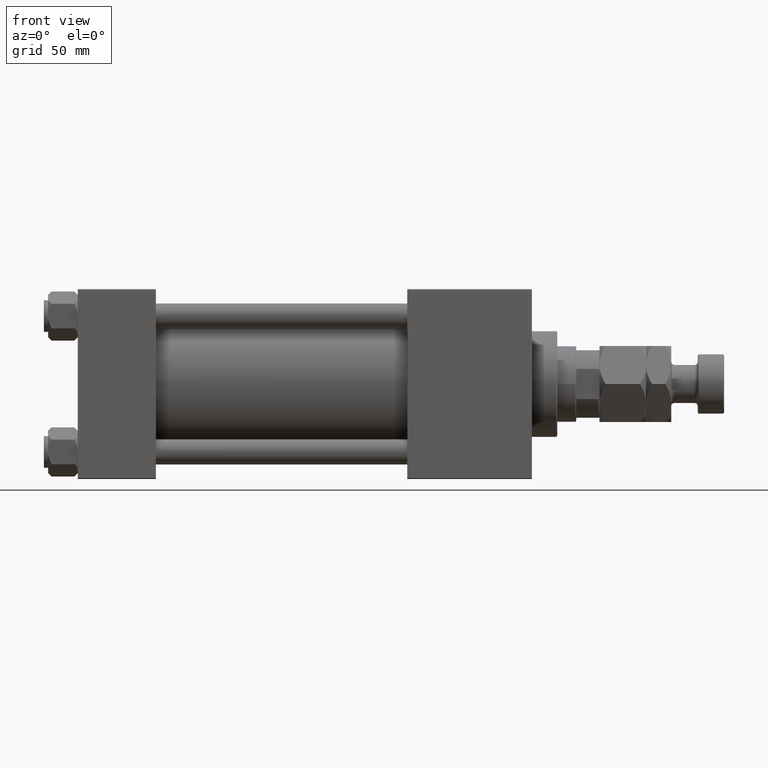
[diagram: clean part render]
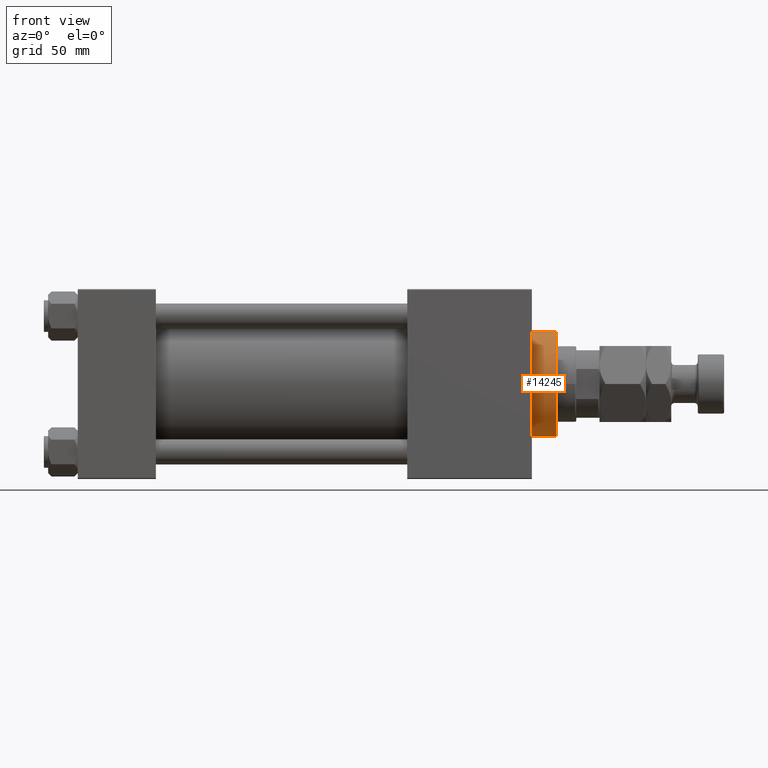
[diagram: same view with one face highlighted and labeled with its STEP entity id]
A machine part, front view. The second image highlights one B-rep face of the part: STEP entity #14245.
In plain terms, the highlighted cylindrical surface (partial cylindrical patch) has radius 25 mm, axis along (-1, -0, -0).
Its self-contained STEP definition (entity closure, byte-faithful):
#133 = AXIS2_PLACEMENT_3D ( 'NONE', #24918, #45399, #9673 ) ;
#430 = EDGE_LOOP ( 'NONE', ( #23771, #21207, #16309, #26167 ) ) ;
#539 = CARTESIAN_POINT ( 'NONE',  ( -25.00000000000000000, 0.000000000000000000, 40.70000000000000284 ) ) ;
#1272 = VERTEX_POINT ( 'NONE', #29837 ) ;
#2043 = FACE_OUTER_BOUND ( 'NONE', #430, .T. ) ;
#3930 = CARTESIAN_POINT ( 'NONE',  ( -25.00000000000000000, 0.000000000000000000, 28.69999999999999929 ) ) ;
#5412 = DIRECTION ( 'NONE',  ( 1.000000000000000000, 0.000000000000000000, 0.000000000000000000 ) ) ;
#6093 = VERTEX_POINT ( 'NONE', #3930 ) ;
#6391 = CARTESIAN_POINT ( 'NONE',  ( 0.000000000000000000, 0.000000000000000000, 40.20000000000000284 ) ) ;
#8114 = AXIS2_PLACEMENT_3D ( 'NONE', #44826, #24860, #5412 ) ;
#8673 = DIRECTION ( 'NONE',  ( -0.000000000000000000, -0.000000000000000000, -1.000000000000000000 ) ) ;
#8724 = CARTESIAN_POINT ( 'NONE',  ( 25.00000000000000000, 3.061616997868383043E-15, 28.69999999999999929 ) ) ;
#9673 = DIRECTION ( 'NONE',  ( -1.000000000000000000, 0.000000000000000000, 0.000000000000000000 ) ) ;
#14245 = ADVANCED_FACE ( 'NONE', ( #2043 ), #50110, .T. ) ;
#16309 = ORIENTED_EDGE ( 'NONE', *, *, #43107, .T. ) ;
#18242 = CARTESIAN_POINT ( 'NONE',  ( 25.00000000000000000, 3.061616997868383043E-15, 40.70000000000000284 ) ) ;
#19727 = CIRCLE ( 'NONE', #40692, 25.00000000000000000 ) ;
#21207 = ORIENTED_EDGE ( 'NONE', *, *, #25951, .T. ) ;
#22182 = DIRECTION ( 'NONE',  ( -0.000000000000000000, -0.000000000000000000, -1.000000000000000000 ) ) ;
#23771 = ORIENTED_EDGE ( 'NONE', *, *, #37480, .F. ) ;
#24860 = DIRECTION ( 'NONE',  ( 0.000000000000000000, 0.000000000000000000, 1.000000000000000000 ) ) ;
#24918 = CARTESIAN_POINT ( 'NONE',  ( 0.000000000000000000, 0.000000000000000000, 40.70000000000000284 ) ) ;
#25951 = EDGE_CURVE ( 'NONE', #47036, #1272, #19727, .T. ) ;
#26167 = ORIENTED_EDGE ( 'NONE', *, *, #30545, .T. ) ;
#27565 = VECTOR ( 'NONE', #22182, 1000.000000000000000 ) ;
#29837 = CARTESIAN_POINT ( 'NONE',  ( -25.00000000000000000, 0.000000000000000000, 40.20000000000000284 ) ) ;
#30545 = EDGE_CURVE ( 'NONE', #6093, #40869, #32427, .T. ) ;
#31666 = VECTOR ( 'NONE', #8673, 1000.000000000000000 ) ;
#32427 = CIRCLE ( 'NONE', #8114, 25.00000000000000000 ) ;
#34515 = DIRECTION ( 'NONE',  ( 0.000000000000000000, 0.000000000000000000, -1.000000000000000000 ) ) ;
#35036 = LINE ( 'NONE', #18242, #27565 ) ;
#37480 = EDGE_CURVE ( 'NONE', #47036, #40869, #35036, .T. ) ;
#38450 = DIRECTION ( 'NONE',  ( 1.000000000000000000, 0.000000000000000000, 0.000000000000000000 ) ) ;
#40692 = AXIS2_PLACEMENT_3D ( 'NONE', #6391, #34515, #38450 ) ;
#40869 = VERTEX_POINT ( 'NONE', #8724 ) ;
#43107 = EDGE_CURVE ( 'NONE', #1272, #6093, #45457, .T. ) ;
#44826 = CARTESIAN_POINT ( 'NONE',  ( 0.000000000000000000, 0.000000000000000000, 28.69999999999999929 ) ) ;
#45399 = DIRECTION ( 'NONE',  ( -0.000000000000000000, -0.000000000000000000, -1.000000000000000000 ) ) ;
#45457 = LINE ( 'NONE', #539, #31666 ) ;
#47036 = VERTEX_POINT ( 'NONE', #51056 ) ;
#50110 = CYLINDRICAL_SURFACE ( 'NONE', #133, 25.00000000000000000 ) ;
#51056 = CARTESIAN_POINT ( 'NONE',  ( 25.00000000000000000, 3.061616997868383043E-15, 40.20000000000000284 ) ) ;